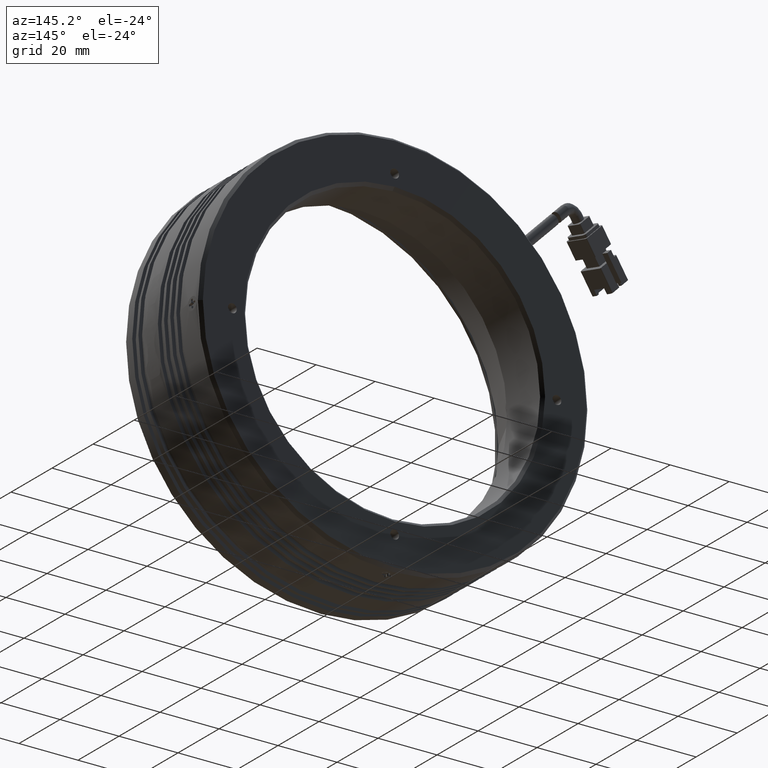
[diagram: clean part render]
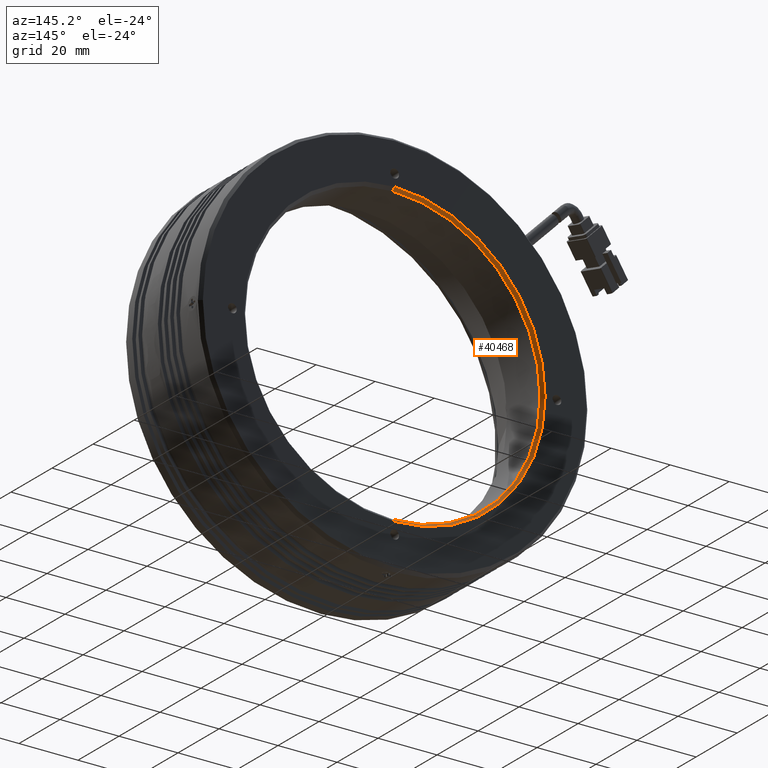
[diagram: same view with one face highlighted and labeled with its STEP entity id]
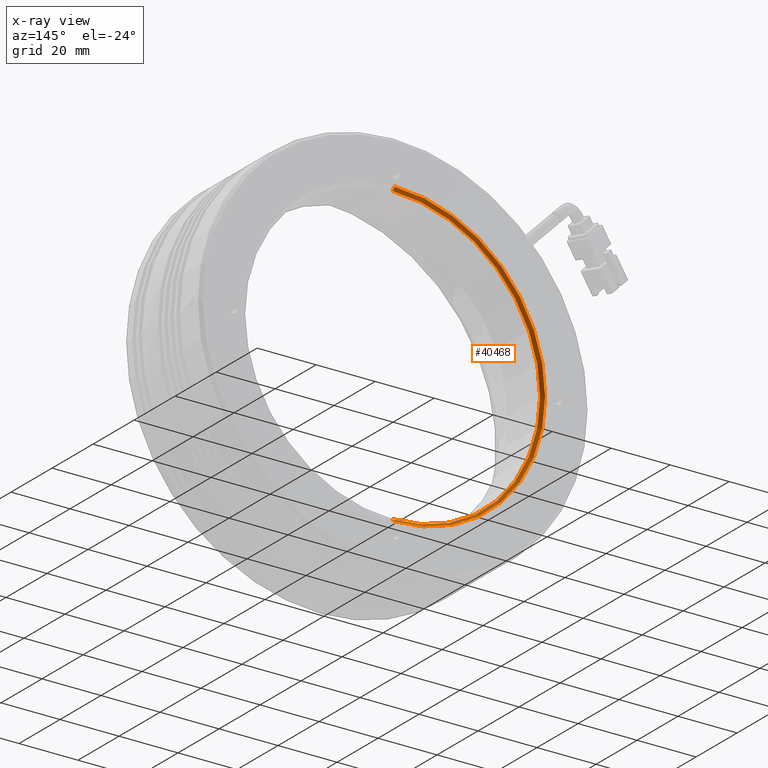
[diagram: x-ray of the same camera — body ghosted, the highlighted face saturated]
A machine part, auxiliary view. The second image highlights one B-rep face of the part: STEP entity #40468.
The next image is the same camera in x-ray: the body ghosted, the highlighted face saturated — about 0% of this face is hidden behind the body in this view.
In plain terms, the highlighted conical surface has half-angle 45 deg.
Its self-contained STEP definition (entity closure, byte-faithful):
#2200 = EDGE_LOOP ( 'NONE', ( #62730, #36053, #46375, #35292 ) ) ;
#4326 = AXIS2_PLACEMENT_3D ( 'NONE', #5421, #44195, #10975 ) ;
#4804 = VERTEX_POINT ( 'NONE', #5619 ) ;
#5421 = CARTESIAN_POINT ( 'NONE',  ( -22.28931969498007600, 31.14734950584006900, 0.0000000000000000000 ) ) ;
#5619 = CARTESIAN_POINT ( 'NONE',  ( -22.28931969498006900, 31.14734950584006900, -51.00000000000003600 ) ) ;
#6165 = EDGE_CURVE ( 'NONE', #36903, #4804, #9980, .T. ) ;
#7197 = DIRECTION ( 'NONE',  ( -0.0000000000000000000, 1.000000000000000000, -0.0000000000000000000 ) ) ;
#9980 = LINE ( 'NONE', #63571, #24757 ) ;
#10975 = DIRECTION ( 'NONE',  ( 0.0000000000000000000, 0.0000000000000000000, 1.000000000000000000 ) ) ;
#11007 = EDGE_CURVE ( 'NONE', #4804, #70907, #14917, .T. ) ;
#14296 = CARTESIAN_POINT ( 'NONE',  ( -22.28931969498007600, 31.14734950584006900, 0.0000000000000000000 ) ) ;
#14917 = CIRCLE ( 'NONE', #17263, 51.00000000000003600 ) ;
#17263 = AXIS2_PLACEMENT_3D ( 'NONE', #14296, #53051, #19851 ) ;
#19699 = EDGE_CURVE ( 'NONE', #69240, #70907, #54168, .T. ) ;
#19851 = DIRECTION ( 'NONE',  ( 0.0000000000000000000, 0.0000000000000000000, 1.000000000000000000 ) ) ;
#20621 = AXIS2_PLACEMENT_3D ( 'NONE', #40422, #7197, #45976 ) ;
#24222 = FACE_OUTER_BOUND ( 'NONE', #2200, .T. ) ;
#24757 = VECTOR ( 'NONE', #24824, 1000.000000000000000 ) ;
#24824 = DIRECTION ( 'NONE',  ( 8.659560562354902000E-017, 0.7071067811865500200, -0.7071067811865450200 ) ) ;
#26238 = CARTESIAN_POINT ( 'NONE',  ( -22.28931969498007600, 31.14734950584006900, 51.00000000000003600 ) ) ;
#35292 = ORIENTED_EDGE ( 'NONE', *, *, #19699, .F. ) ;
#36053 = ORIENTED_EDGE ( 'NONE', *, *, #6165, .T. ) ;
#36903 = VERTEX_POINT ( 'NONE', #37953 ) ;
#37953 = CARTESIAN_POINT ( 'NONE',  ( -22.28931969498007600, 30.14734950584002600, -50.00000000000000000 ) ) ;
#40422 = CARTESIAN_POINT ( 'NONE',  ( -22.28931969498007600, 30.14734950584002600, 0.0000000000000000000 ) ) ;
#40468 = ADVANCED_FACE ( 'NONE', ( #24222 ), #59722, .F. ) ;
#44195 = DIRECTION ( 'NONE',  ( 0.0000000000000000000, 1.000000000000000000, 0.0000000000000000000 ) ) ;
#45666 = CARTESIAN_POINT ( 'NONE',  ( -22.28931969498007600, 31.14734950584006900, 51.00000000000003600 ) ) ;
#45976 = DIRECTION ( 'NONE',  ( 0.0000000000000000000, 0.0000000000000000000, 1.000000000000000000 ) ) ;
#46375 = ORIENTED_EDGE ( 'NONE', *, *, #11007, .T. ) ;
#49798 = CIRCLE ( 'NONE', #20621, 50.00000000000000000 ) ;
#50293 = CARTESIAN_POINT ( 'NONE',  ( -22.28931969498006900, 30.14734950584002600, 50.00000000000000000 ) ) ;
#53051 = DIRECTION ( 'NONE',  ( 0.0000000000000000000, 1.000000000000000000, 0.0000000000000000000 ) ) ;
#54168 = LINE ( 'NONE', #26238, #68864 ) ;
#59416 = DIRECTION ( 'NONE',  ( 0.0000000000000000000, 0.7071067811865500200, 0.7071067811865450200 ) ) ;
#59722 = CONICAL_SURFACE ( 'NONE', #4326, 51.00000000000003600, 0.7853981633974447300 ) ;
#62730 = ORIENTED_EDGE ( 'NONE', *, *, #70424, .F. ) ;
#63571 = CARTESIAN_POINT ( 'NONE',  ( -22.28931969498006900, 31.14734950584006900, -51.00000000000003600 ) ) ;
#68864 = VECTOR ( 'NONE', #59416, 1000.000000000000000 ) ;
#69240 = VERTEX_POINT ( 'NONE', #50293 ) ;
#70424 = EDGE_CURVE ( 'NONE', #36903, #69240, #49798, .T. ) ;
#70907 = VERTEX_POINT ( 'NONE', #45666 ) ;